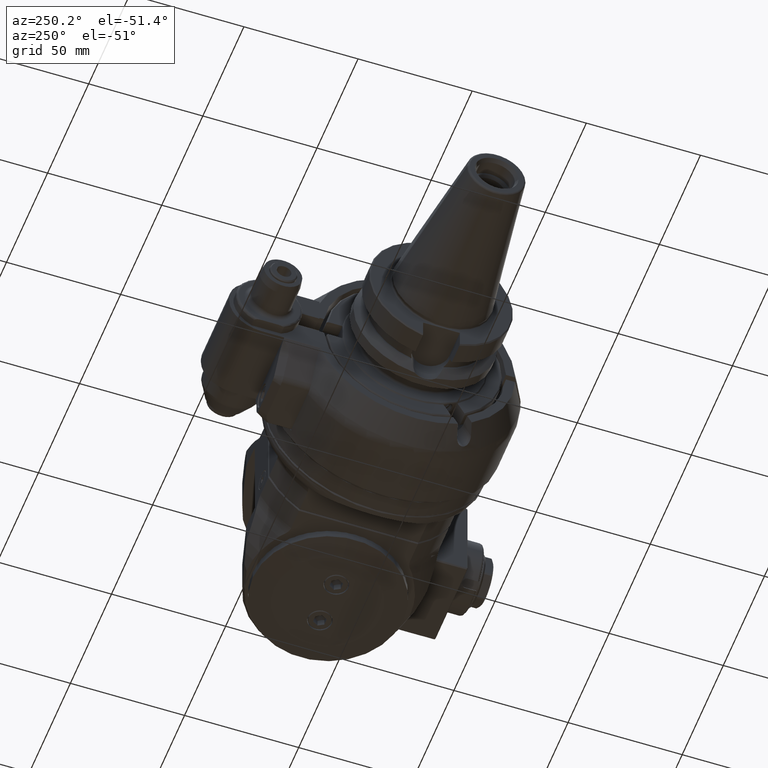
[diagram: clean part render]
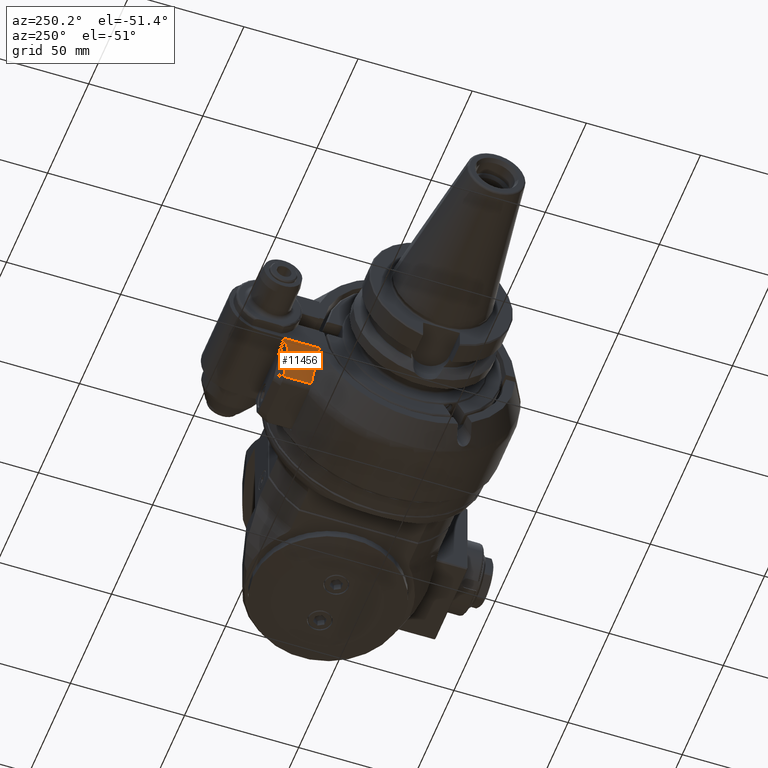
[diagram: same view with one face highlighted and labeled with its STEP entity id]
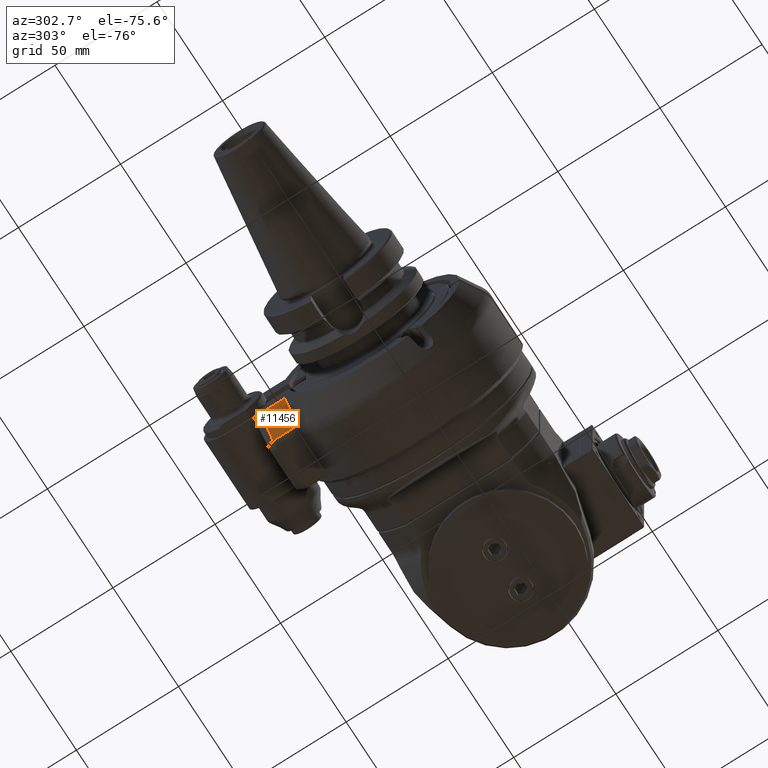
[diagram: same view with one face highlighted and labeled with its STEP entity id]
A machine part, auxiliary view. The second image highlights one B-rep face of the part: STEP entity #11456.
A second angle (auxiliary view) of the same face is appended — the face is thin or edge-on in the first view.
In plain terms, the highlighted planar face has unit normal (-0.766, -0, -0.6428).
Its self-contained STEP definition (entity closure, byte-faithful):
#1443=FACE_OUTER_BOUND('',#2200,.T.);
#2200=EDGE_LOOP('',(#9453,#9454,#9455,#9456,#9457,#9458));
#3005=LINE('',#19432,#3800);
#3018=LINE('',#19495,#3813);
#3026=LINE('',#19516,#3821);
#3027=LINE('',#19522,#3822);
#3028=LINE('',#19523,#3823);
#3800=VECTOR('',#15020,15.5024588697499);
#3813=VECTOR('',#15059,0.370290646033097);
#3821=VECTOR('',#15079,12.03589838909);
#3822=VECTOR('',#15082,8.20396499672106);
#3823=VECTOR('',#15083,15.5);
#4369=(
BOUNDED_CURVE()
B_SPLINE_CURVE(2,(#19519,#19520,#19521),.UNSPECIFIED.,.F.,.F.)
B_SPLINE_CURVE_WITH_KNOTS((3,3),(-1.72603742246312,-0.91256123534167),
 .UNSPECIFIED.)
CURVE()
GEOMETRIC_REPRESENTATION_ITEM()
RATIONAL_B_SPLINE_CURVE((1.02406032556474,1.11715671879784,1.11715671879796))
REPRESENTATION_ITEM('')
);
#5175=VERTEX_POINT('',#19429);
#5176=VERTEX_POINT('',#19431);
#5200=VERTEX_POINT('',#19492);
#5201=VERTEX_POINT('',#19494);
#5208=VERTEX_POINT('',#19510);
#5209=VERTEX_POINT('',#19518);
#6655=EDGE_CURVE('',#5175,#5176,#3005,.T.);
#6682=EDGE_CURVE('',#5200,#5201,#3018,.T.);
#6694=EDGE_CURVE('',#5176,#5208,#3026,.T.);
#6695=EDGE_CURVE('',#5200,#5209,#4369,.T.);
#6696=EDGE_CURVE('',#5208,#5209,#3027,.T.);
#6697=EDGE_CURVE('',#5201,#5175,#3028,.T.);
#9453=ORIENTED_EDGE('',*,*,#6695,.T.);
#9454=ORIENTED_EDGE('',*,*,#6696,.F.);
#9455=ORIENTED_EDGE('',*,*,#6694,.F.);
#9456=ORIENTED_EDGE('',*,*,#6655,.F.);
#9457=ORIENTED_EDGE('',*,*,#6697,.F.);
#9458=ORIENTED_EDGE('',*,*,#6682,.F.);
#10905=PLANE('',#12550);
#11456=ADVANCED_FACE('',(#1443),#10905,.T.);
#12550=AXIS2_PLACEMENT_3D('',#19517,#15080,#15081);
#15020=DIRECTION('',(0.642787609686506,0.,-0.766044443119006));
#15059=DIRECTION('',(-0.642787609686505,0.,0.766044443119006));
#15079=DIRECTION('',(2.504247427587E-10,1.,-1.454830232723E-10));
#15080=DIRECTION('center_axis',(-0.766044443119007,0.,-0.642787609686505));
#15081=DIRECTION('ref_axis',(0.642787609686505,0.,-0.766044443119007));
#15082=DIRECTION('',(-0.642787609796995,-5.15014900744396E-10,0.766044443026294));
#15083=DIRECTION('',(-1.604451338813E-14,-1.,2.349375174691E-14));
#19429=CARTESIAN_POINT('',(-51.38302222156,41.75,-15.33836557658));
#19431=CARTESIAN_POINT('',(-41.41823374041,41.75,-27.21393804843));
#19432=CARTESIAN_POINT('',(-51.38302222156,41.75,-15.33836557658));
#19492=CARTESIAN_POINT('',(-51.14500398231,57.25,-15.62202466831));
#19494=CARTESIAN_POINT('',(-51.38302222156,57.25,-15.33836557658));
#19495=CARTESIAN_POINT('',(-51.14500398231,57.25,-15.62202466831));
#19510=CARTESIAN_POINT('',(-41.4182337366007,53.7858983905508,-27.2139380495162));
#19516=CARTESIAN_POINT('',(-41.41823374041,41.75,-27.21393804843));
#19517=CARTESIAN_POINT('Origin',(-45.5,49.5,-22.34947844443));
#19518=CARTESIAN_POINT('',(-46.6916407885,53.78589838486,-20.92933625366));
#19519=CARTESIAN_POINT('Ctrl Pts',(-51.1450039823025,57.2500000000068,-15.6220246683118));
#19520=CARTESIAN_POINT('Ctrl Pts',(-48.7327655856559,53.7858983848699,-18.4968184437093));
#19521=CARTESIAN_POINT('Ctrl Pts',(-46.6916407884937,53.7858983848661,-20.9293362536608));
#19522=CARTESIAN_POINT('',(-41.41823373739,53.78589838909,-27.21393805018));
#19523=CARTESIAN_POINT('',(-51.38302222156,57.25,-15.33836557658));